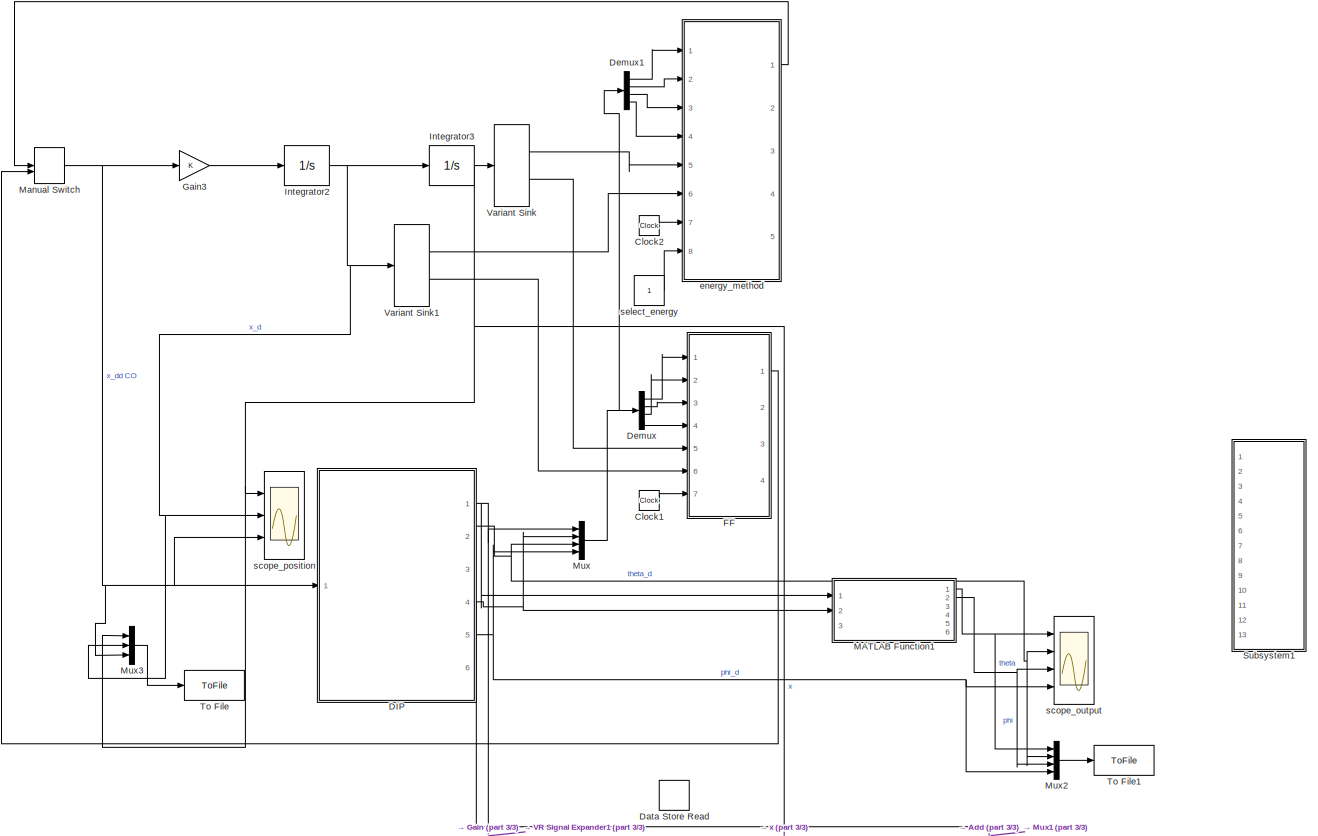
[diagram: root canvas - part 1/3, top center region]
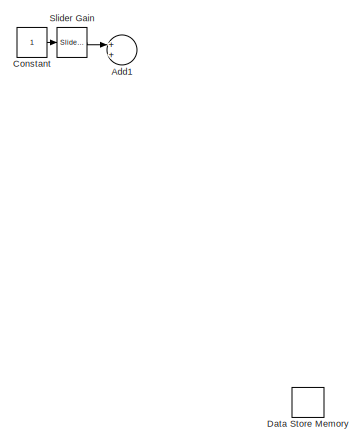
[diagram: root canvas - part 2/3, middle left region]
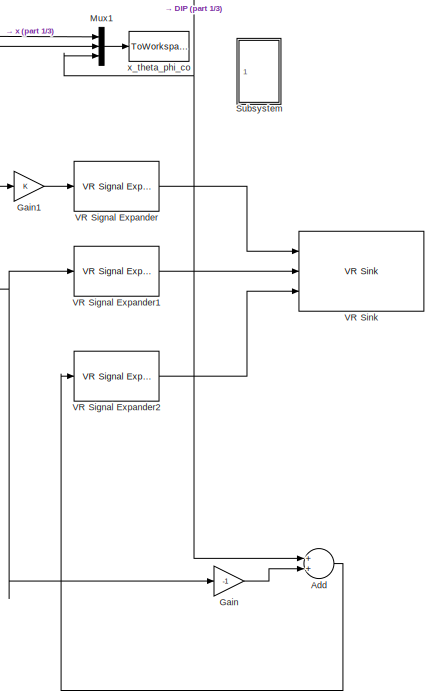
[diagram: root canvas - part 3/3, bottom right region]
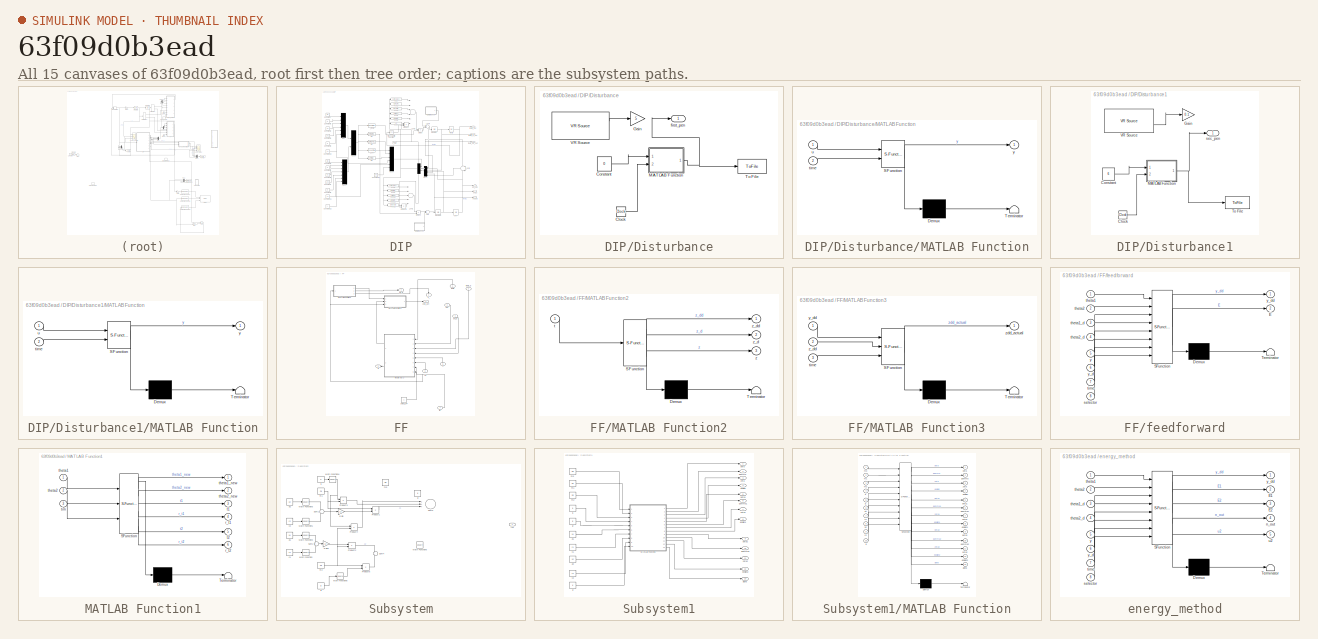
[diagram: thumbnail index - all 15 canvases of the model, root first then tree order]
MODEL slx_63f09d0b3ead
KIND model
CONFIG AbsTol = auto
CONFIG FixedStep = 0.001
CONFIG MaxStep = auto
CONFIG MinStep = auto
CONFIG RelTol = 1e-3
CONFIG SampleTimeConstraint = Unconstrained
CONFIG Solver = ode4
CONFIG SolverMode = Auto
CONFIG SolverName = ode4
CONFIG StartTime = 0.0
CONFIG StopTime = 20
BLOCK [Sum] Add
  InputSameDT = off
  OutDataTypeStr = Inherit: Inherit via internal rule
  Ports = [2, 1]
  SaturateOnIntegerOverflow = off
BLOCK [Sum] Add1
  InputSameDT = off
  OutDataTypeStr = Inherit: Inherit via internal rule
  Ports = [2, 1]
  SaturateOnIntegerOverflow = off
BLOCK [Clock] Clock1
BLOCK [Clock] Clock2
BLOCK [Constant] Constant
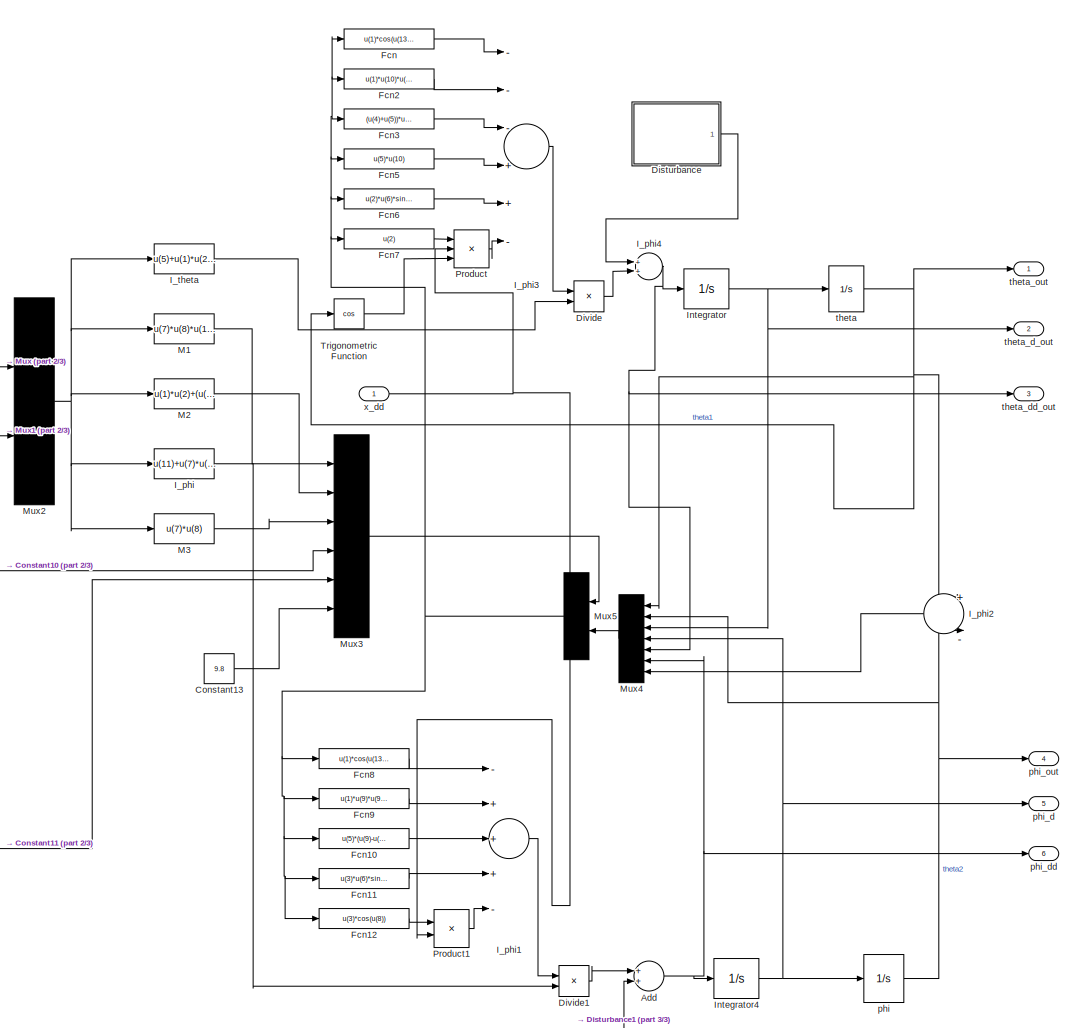
[diagram: DIP - part 1/3, most of the canvas]
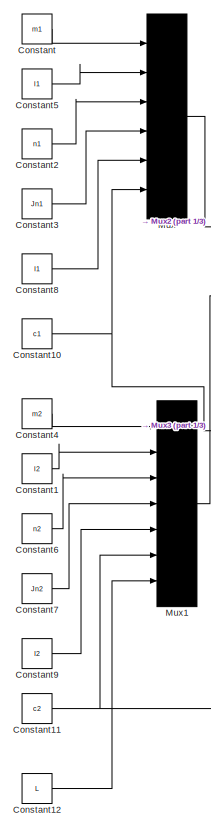
[diagram: DIP - part 2/3, middle left region]
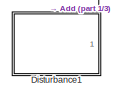
[diagram: DIP - part 3/3, bottom center region]
BLOCK [SubSystem] DIP
  Ports = [1, 6]
  RequestExecContextInheritance = off
  Variant = off
BLOCK [Sum] DIP/Add
  InputSameDT = off
  OutDataTypeStr = Inherit: Inherit via internal rule
  Ports = [2, 1]
  SaturateOnIntegerOverflow = off
BLOCK [Constant] DIP/Constant
  Value = m1
BLOCK [Constant] DIP/Constant1
  Value = l2
BLOCK [Constant] DIP/Constant10
  Value = c1
BLOCK [Constant] DIP/Constant11
  Value = c2
BLOCK [Constant] DIP/Constant12
  Value = L
BLOCK [Constant] DIP/Constant13
  Value = 9.8
BLOCK [Constant] DIP/Constant2
  Value = n1
BLOCK [Constant] DIP/Constant3
  Value = Jn1
BLOCK [Constant] DIP/Constant4
  Value = m2
BLOCK [Constant] DIP/Constant5
  Value = l1
BLOCK [Constant] DIP/Constant6
  Value = n2
BLOCK [Constant] DIP/Constant7
  Value = Jn2
BLOCK [Constant] DIP/Constant8
  Value = I1
BLOCK [Constant] DIP/Constant9
  Value = I2
BLOCK [SubSystem] DIP/Disturbance
  Commented = on
  Ports = [0, 1]
  RequestExecContextInheritance = off
  Variant = off
BLOCK [Clock] DIP/Disturbance/Clock
BLOCK [Constant] DIP/Disturbance/Constant
  Value = 0
BLOCK [Gain] DIP/Disturbance/Gain
  Gain = 5
  OutDataTypeStr = Inherit: Inherit via internal rule
  ParamDataTypeStr = Inherit: Inherit via internal rule
  SaturateOnIntegerOverflow = off
BLOCK [SubSystem] DIP/Disturbance/MATLAB Function
  ErrorFcn = Stateflow.Translate.translate
  PermitHierarchicalResolution = ExplicitOnly
  Ports = [2, 1]
  RequestExecContextInheritance = off
  SFBlockType = MATLAB Function
  TreatAsAtomicUnit = on
  Variant = off
BLOCK [Demux] DIP/Disturbance/MATLAB Function/ Demux 
  Outputs = 1
  Ports = [1, 1]
BLOCK [S-Function] DIP/Disturbance/MATLAB Function/ SFunction 
  EnableBusSupport = on
  FunctionName = sf_sfun
  PortCounts = [2 2]
  Ports = [2, 2]
  SFunctionDeploymentMode = off
  Tag = Stateflow S-Function pendulumgui 1
BLOCK [Terminator] DIP/Disturbance/MATLAB Function/ Terminator 
BLOCK [Inport] DIP/Disturbance/MATLAB Function/time
  IconDisplay = Port number
  Port = 2
BLOCK [Inport] DIP/Disturbance/MATLAB Function/u
  IconDisplay = Port number
BLOCK [Outport] DIP/Disturbance/MATLAB Function/y
  IconDisplay = Port number
BLOCK [ToFile] DIP/Disturbance/To File
  Filename = d_theta1.mat
  Ports = [1]
  SaveFormat = Timeseries
BLOCK [Reference] DIP/Disturbance/VR Source  REF=vrlib/VR Source
  InstantiateOnLoad = on
  Ports = [0, 2]
  SourceBlock = vrlib/VR Source
  SourceType = Virtual Reality Source
BLOCK [Outport] DIP/Disturbance/first_pen
  IconDisplay = Port number
BLOCK [SubSystem] DIP/Disturbance1
  Commented = on
  Ports = [0, 1]
  RequestExecContextInheritance = off
  Variant = off
BLOCK [Clock] DIP/Disturbance1/Clock
BLOCK [Constant] DIP/Disturbance1/Constant
  Value = 6
BLOCK [Gain] DIP/Disturbance1/Gain
  Gain = 0.1
  OutDataTypeStr = double
  ParamDataTypeStr = Inherit: Inherit via internal rule
  SaturateOnIntegerOverflow = off
BLOCK [SubSystem] DIP/Disturbance1/MATLAB Function
  ErrorFcn = Stateflow.Translate.translate
  PermitHierarchicalResolution = ExplicitOnly
  Ports = [2, 1]
  RequestExecContextInheritance = off
  SFBlockType = MATLAB Function
  TreatAsAtomicUnit = on
  Variant = off
BLOCK [Demux] DIP/Disturbance1/MATLAB Function/ Demux 
  Outputs = 1
  Ports = [1, 1]
BLOCK [S-Function] DIP/Disturbance1/MATLAB Function/ SFunction 
  EnableBusSupport = on
  FunctionName = sf_sfun
  PortCounts = [2 2]
  Ports = [2, 2]
  SFunctionDeploymentMode = off
  Tag = Stateflow S-Function pendulumgui 4
BLOCK [Terminator] DIP/Disturbance1/MATLAB Function/ Terminator 
BLOCK [Inport] DIP/Disturbance1/MATLAB Function/time
  IconDisplay = Port number
  Port = 2
BLOCK [Inport] DIP/Disturbance1/MATLAB Function/u
  IconDisplay = Port number
BLOCK [Outport] DIP/Disturbance1/MATLAB Function/y
  IconDisplay = Port number
BLOCK [ToFile] DIP/Disturbance1/To File
  Filename = d_theta2.mat
  Ports = [1]
  SaveFormat = Timeseries
BLOCK [Reference] DIP/Disturbance1/VR Source  REF=vrlib/VR Source
  InstantiateOnLoad = on
  Ports = [0, 2]
  SourceBlock = vrlib/VR Source
  SourceType = Virtual Reality Source
BLOCK [Outport] DIP/Disturbance1/sec_pen
  IconDisplay = Port number
BLOCK [Product] DIP/Divide
  InputSameDT = off
  Inputs = */
  OutDataTypeStr = Inherit: Inherit via internal rule
  Ports = [2, 1]
  RndMeth = Floor
  SaturateOnIntegerOverflow = off
BLOCK [Product] DIP/Divide1
  InputSameDT = off
  Inputs = */
  OutDataTypeStr = Inherit: Inherit via internal rule
  Ports = [2, 1]
  RndMeth = Floor
  SaturateOnIntegerOverflow = off
BLOCK [Fcn] DIP/Fcn
  Expr = u(1)*cos(u(13))*u(12)
BLOCK [Fcn] DIP/Fcn10
  Expr = u(5)*(u(9)-u(10))
BLOCK [Fcn] DIP/Fcn11
  Expr = u(3)*u(6)*sin(u(8))
BLOCK [Fcn] DIP/Fcn12
  Expr = u(3)*cos(u(8))
BLOCK [Fcn] DIP/Fcn2
  Expr = u(1)*u(10)*u(10)*sin(u(13))
BLOCK [Fcn] DIP/Fcn3
  Expr = (u(4)+u(5))*u(9)
BLOCK [Fcn] DIP/Fcn5
  Expr = u(5)*u(10)
BLOCK [Fcn] DIP/Fcn6
  Expr = u(2)*u(6)*sin(u(7))
BLOCK [Fcn] DIP/Fcn7
  Expr = u(2)
BLOCK [Fcn] DIP/Fcn8
  Expr = u(1)*cos(u(13))*u(11)
BLOCK [Fcn] DIP/Fcn9
  Expr = u(1)*u(9)*u(9)*sin(u(13))
BLOCK [Fcn] DIP/I_phi
  Expr = u(11)+u(7)*u(8)*u(8)+u(10)
BLOCK [Sum] DIP/I_phi1
  InputSameDT = off
  Inputs = -+++-
  OutDataTypeStr = Inherit: Inherit via internal rule
  Ports = [5, 1]
  SaturateOnIntegerOverflow = off
BLOCK [Sum] DIP/I_phi2
  IconShape = round
  InputSameDT = off
  Inputs = +|-
  OutDataTypeStr = Inherit: Inherit via internal rule
  Ports = [2, 1]
  SaturateOnIntegerOverflow = off
BLOCK [Sum] DIP/I_phi3
  InputSameDT = off
  Inputs = ---++-
  OutDataTypeStr = Inherit: Inherit via internal rule
  Ports = [6, 1]
  SaturateOnIntegerOverflow = off
BLOCK [Sum] DIP/I_phi4
  InputSameDT = off
  OutDataTypeStr = Inherit: Inherit via internal rule
  Ports = [2, 1]
  SaturateOnIntegerOverflow = off
BLOCK [Fcn] DIP/I_theta
  Expr = u(5)+u(1)*u(2)*u(2)+(u(7)+u(9))*u(13)*u(13)+u(4)
BLOCK [Integrator] DIP/Integrator
  Ports = [1, 1]
BLOCK [Integrator] DIP/Integrator4
  Ports = [1, 1]
BLOCK [Fcn] DIP/M1
  Expr = u(7)*u(8)*u(13)
BLOCK [Fcn] DIP/M2
  Expr = u(1)*u(2)+(u(7)+u(9))*u(13)
BLOCK [Fcn] DIP/M3
  Expr = u(7)*u(8)
BLOCK [Mux] DIP/Mux
  DisplayOption = bar
  Inputs = 6
  Ports = [6, 1]
BLOCK [Mux] DIP/Mux1
  DisplayOption = bar
  Inputs = 7
  Ports = [7, 1]
BLOCK [Mux] DIP/Mux2
  DisplayOption = bar
  Inputs = 2
  Ports = [2, 1]
BLOCK [Mux] DIP/Mux3
  DisplayOption = bar
  Inputs = 6
  Ports = [6, 1]
BLOCK [Mux] DIP/Mux4
  DisplayOption = bar
  Inputs = 7
  Ports = [7, 1]
BLOCK [Mux] DIP/Mux5
  DisplayOption = bar
  Inputs = 2
  Ports = [2, 1]
BLOCK [Product] DIP/Product
  InputSameDT = off
  Inputs = 3
  OutDataTypeStr = Inherit: Inherit via internal rule
  Ports = [3, 1]
  RndMeth = Floor
  SaturateOnIntegerOverflow = off
BLOCK [Product] DIP/Product1
  InputSameDT = off
  OutDataTypeStr = Inherit: Inherit via internal rule
  Ports = [2, 1]
  RndMeth = Floor
  SaturateOnIntegerOverflow = off
BLOCK [Trigonometry] DIP/Trigonometric Function
  Operator = cos
  Ports = [1, 1]
BLOCK [Integrator] DIP/phi
  InitialCondition = -pi
  Ports = [1, 1]
  WrapState = on
BLOCK [Outport] DIP/phi_d
  IconDisplay = Port number
  Port = 5
BLOCK [Outport] DIP/phi_dd
  IconDisplay = Port number
  Port = 6
BLOCK [Outport] DIP/phi_out
  IconDisplay = Port number
  Port = 4
BLOCK [Integrator] DIP/theta
  InitialCondition = -pi+(pi/100)
  Ports = [1, 1]
  WrapState = on
BLOCK [Outport] DIP/theta_d_out
  IconDisplay = Port number
  Port = 2
BLOCK [Outport] DIP/theta_dd_out
  IconDisplay = Port number
  Port = 3
BLOCK [Outport] DIP/theta_out
  IconDisplay = Port number
BLOCK [Inport] DIP/x_dd
  IconDisplay = Port number
BLOCK [DataStoreMemory] Data Store Memory
  DataStoreName = n
  InitialValue = 1
  OutDataTypeStr = double
  ShowAdditionalParam = off
  SignalType = real
BLOCK [DataStoreRead] Data Store Read
  DataStoreElements = n
  DataStoreName = n
  Ports = [0, 1]
BLOCK [Demux] Demux
  DisplayOption = bar
  Ports = [1, 4]
BLOCK [Demux] Demux1
  DisplayOption = bar
  Ports = [1, 4]
BLOCK [SubSystem] FF
  Ports = [7, 4]
  RequestExecContextInheritance = off
  Variant = off
BLOCK [Outport] FF/E
  IconDisplay = Port number
  Port = 3
BLOCK [SubSystem] FF/MATLAB Function2
  ErrorFcn = Stateflow.Translate.translate
  PermitHierarchicalResolution = ExplicitOnly
  Ports = [1, 3]
  RequestExecContextInheritance = off
  SFBlockType = MATLAB Function
  TreatAsAtomicUnit = on
  Variant = off
BLOCK [Demux] FF/MATLAB Function2/ Demux 
  Outputs = 1
  Ports = [1, 1]
BLOCK [S-Function] FF/MATLAB Function2/ SFunction 
  EnableBusSupport = on
  FunctionName = sf_sfun
  PortCounts = [1 4]
  Ports = [1, 4]
  SFunctionDeploymentMode = off
  Tag = Stateflow S-Function pendulumgui 6
BLOCK [Terminator] FF/MATLAB Function2/ Terminator 
BLOCK [Inport] FF/MATLAB Function2/t
  IconDisplay = Port number
BLOCK [Outport] FF/MATLAB Function2/z
  IconDisplay = Port number
  Port = 3
BLOCK [Outport] FF/MATLAB Function2/z_d
  IconDisplay = Port number
  Port = 2
BLOCK [Outport] FF/MATLAB Function2/z_dd
  IconDisplay = Port number
BLOCK [SubSystem] FF/MATLAB Function3
  ErrorFcn = Stateflow.Translate.translate
  PermitHierarchicalResolution = ExplicitOnly
  Ports = [3, 1]
  RequestExecContextInheritance = off
  SFBlockType = MATLAB Function
  TreatAsAtomicUnit = on
  Variant = off
BLOCK [Demux] FF/MATLAB Function3/ Demux 
  Outputs = 1
  Ports = [1, 1]
BLOCK [S-Function] FF/MATLAB Function3/ SFunction 
  EnableBusSupport = on
  FunctionName = sf_sfun
  PortCounts = [3 2]
  Ports = [3, 2]
  SFunctionDeploymentMode = off
  Tag = Stateflow S-Function pendulumgui 7
BLOCK [Terminator] FF/MATLAB Function3/ Terminator 
BLOCK [Inport] FF/MATLAB Function3/time
  IconDisplay = Port number
  Port = 3
BLOCK [Inport] FF/MATLAB Function3/y_dd
  IconDisplay = Port number
BLOCK [Inport] FF/MATLAB Function3/z_dd
  IconDisplay = Port number
  Port = 2
BLOCK [Outport] FF/MATLAB Function3/zdd_actual
  IconDisplay = Port number
BLOCK [SubSystem] FF/feedforward
  ErrorFcn = Stateflow.Translate.translate
  PermitHierarchicalResolution = ExplicitOnly
  Ports = [8, 2]
  RequestExecContextInheritance = off
  SFBlockType = MATLAB Function
  TreatAsAtomicUnit = on
  Variant = off
BLOCK [Demux] FF/feedforward/ Demux 
  Outputs = 1
  Ports = [1, 1]
BLOCK [S-Function] FF/feedforward/ SFunction 
  EnableBusSupport = on
  FunctionName = sf_sfun
  PortCounts = [8 3]
  Ports = [8, 3]
  SFunctionDeploymentMode = off
  Tag = Stateflow S-Function pendulumgui 5
BLOCK [Terminator] FF/feedforward/ Terminator 
BLOCK [Outport] FF/feedforward/E
  IconDisplay = Port number
  Port = 2
BLOCK [Inport] FF/feedforward/selector
  IconDisplay = Port number
  Port = 8
BLOCK [Inport] FF/feedforward/theta1
  IconDisplay = Port number
BLOCK [Inport] FF/feedforward/theta1_d
  IconDisplay = Port number
  Port = 3
BLOCK [Inport] FF/feedforward/theta2
  IconDisplay = Port number
  Port = 2
BLOCK [Inport] FF/feedforward/theta2_d
  IconDisplay = Port number
  Port = 4
BLOCK [Inport] FF/feedforward/time
  IconDisplay = Port number
  Port = 7
BLOCK [Inport] FF/feedforward/y
  IconDisplay = Port number
  Port = 5
BLOCK [Inport] FF/feedforward/y_d
  IconDisplay = Port number
  Port = 6
BLOCK [Outport] FF/feedforward/y_dd
  IconDisplay = Port number
BLOCK [Inport] FF/phi
  IconDisplay = Port number
  Port = 3
BLOCK [Inport] FF/phi_d
  IconDisplay = Port number
  Port = 4
BLOCK [Constant] FF/select_FF
BLOCK [Inport] FF/theta
  IconDisplay = Port number
BLOCK [Inport] FF/theta_d
  IconDisplay = Port number
  Port = 2
BLOCK [Inport] FF/tim
  IconDisplay = Port number
  Port = 7
BLOCK [Inport] FF/y
  IconDisplay = Port number
  Port = 5
BLOCK [Inport] FF/yd
  IconDisplay = Port number
  Port = 6
BLOCK [Outport] FF/z_
  IconDisplay = Port number
  Port = 2
BLOCK [Outport] FF/zd_ff
  IconDisplay = Port number
  Port = 4
BLOCK [Outport] FF/zdd_act
  IconDisplay = Port number
BLOCK [Gain] Gain
  Gain = -1
  OutDataTypeStr = Inherit: Inherit via internal rule
  ParamDataTypeStr = Inherit: Inherit via internal rule
  SaturateOnIntegerOverflow = off
BLOCK [Gain] Gain1
  OutDataTypeStr = Inherit: Inherit via internal rule
  ParamDataTypeStr = Inherit: Inherit via internal rule
  SaturateOnIntegerOverflow = off
BLOCK [Gain] Gain3
  OutDataTypeStr = Inherit: Inherit via internal rule
  ParamDataTypeStr = Inherit: Inherit via internal rule
  SaturateOnIntegerOverflow = off
BLOCK [Integrator] Integrator2
  Ports = [1, 1]
BLOCK [Integrator] Integrator3
  LimitOutput = on
  LowerSaturationLimit = -8
  Ports = [1, 1]
  UpperSaturationLimit = 8
BLOCK [SubSystem] MATLAB Function1
  ErrorFcn = Stateflow.Translate.translate
  PermitHierarchicalResolution = ExplicitOnly
  Ports = [3, 6]
  RequestExecContextInheritance = off
  SFBlockType = MATLAB Function
  TreatAsAtomicUnit = on
  Variant = off
BLOCK [Demux] MATLAB Function1/ Demux 
  Outputs = 1
  Ports = [1, 1]
BLOCK [S-Function] MATLAB Function1/ SFunction 
  EnableBusSupport = on
  FunctionName = sf_sfun
  PortCounts = [3 7]
  Ports = [3, 7]
  SFunctionDeploymentMode = off
  Tag = Stateflow S-Function pendulumgui 3
BLOCK [Terminator] MATLAB Function1/ Terminator 
BLOCK [Outport] MATLAB Function1/r_t1
  IconDisplay = Port number
  Port = 4
BLOCK [Outport] MATLAB Function1/r_t2
  IconDisplay = Port number
  Port = 6
BLOCK [Outport] MATLAB Function1/t1
  IconDisplay = Port number
  Port = 3
BLOCK [Outport] MATLAB Function1/t2
  IconDisplay = Port number
  Port = 5
BLOCK [Inport] MATLAB Function1/theta1
  IconDisplay = Port number
BLOCK [Outport] MATLAB Function1/theta1_new
  IconDisplay = Port number
BLOCK [Inport] MATLAB Function1/theta2
  IconDisplay = Port number
  Port = 2
BLOCK [Outport] MATLAB Function1/theta2_new
  IconDisplay = Port number
  Port = 2
BLOCK [Inport] MATLAB Function1/tim
  IconDisplay = Port number
  Port = 3
BLOCK [ManualSwitch] Manual Switch
BLOCK [Mux] Mux
  DisplayOption = bar
  Ports = [4, 1]
BLOCK [Mux] Mux1
  DisplayOption = bar
  Inputs = 3
  Ports = [3, 1]
BLOCK [Mux] Mux2
  DisplayOption = bar
  Ports = [4, 1]
BLOCK [Mux] Mux3
  DisplayOption = bar
  Inputs = 3
  Ports = [3, 1]
BLOCK [Reference] Slider Gain  REF=simulink/Math
Operations/Slider
Gain
  Ports = [1, 1]
  SourceBlock = simulink/Math\nOperations/Slider\nGain
  SourceType = Slider Gain
BLOCK [SubSystem] Subsystem
  Commented = on
  Ports = [1]
  RequestExecContextInheritance = off
  Variant = off
BLOCK [Gain] Subsystem/Gain
  Gain = 12
  OutDataTypeStr = Inherit: Inherit via internal rule
  ParamDataTypeStr = Inherit: Inherit via internal rule
  SaturateOnIntegerOverflow = off
BLOCK [Gain] Subsystem/Gain1
  Gain = 12
  OutDataTypeStr = Inherit: Inherit via internal rule
  ParamDataTypeStr = Inherit: Inherit via internal rule
  SaturateOnIntegerOverflow = off
BLOCK [Inport] Subsystem/In1
  IconDisplay = Port number
BLOCK [Math] Subsystem/Math Function
  Operator = square
  Ports = [1, 1]
BLOCK [Math] Subsystem/Math Function1
  Operator = square
  Ports = [1, 1]
BLOCK [Math] Subsystem/Math Function2
  Operator = square
  Ports = [1, 1]
BLOCK [Math] Subsystem/Math Function3
  Operator = square
  Ports = [1, 1]
BLOCK [Math] Subsystem/Math Function4
  Operator = square
  Ports = [1, 1]
BLOCK [Math] Subsystem/Math Function5
  Operator = square
  Ports = [1, 1]
BLOCK [Math] Subsystem/Math Function6
  Operator = square
  Ports = [1, 1]
BLOCK [Product] Subsystem/Product1
  InputSameDT = off
  OutDataTypeStr = Inherit: Inherit via internal rule
  Ports = [2, 1]
  RndMeth = Floor
  SaturateOnIntegerOverflow = off
BLOCK [Product] Subsystem/Product2
  InputSameDT = off
  OutDataTypeStr = Inherit: Inherit via internal rule
  Ports = [2, 1]
  RndMeth = Floor
  SaturateOnIntegerOverflow = off
BLOCK [Product] Subsystem/Product3
  InputSameDT = off
  OutDataTypeStr = Inherit: Inherit via internal rule
  Ports = [2, 1]
  RndMeth = Floor
  SaturateOnIntegerOverflow = off
BLOCK [Product] Subsystem/Product4
  InputSameDT = off
  OutDataTypeStr = Inherit: Inherit via internal rule
  Ports = [2, 1]
  RndMeth = Floor
  SaturateOnIntegerOverflow = off
BLOCK [Product] Subsystem/Product5
  InputSameDT = off
  OutDataTypeStr = Inherit: Inherit via internal rule
  Ports = [2, 1]
  RndMeth = Floor
  SaturateOnIntegerOverflow = off
BLOCK [Sum] Subsystem/Sum1
  IconShape = round
  InputSameDT = off
  Inputs = +|+
  OutDataTypeStr = Inherit: Inherit via internal rule
  Ports = [2, 1]
  SaturateOnIntegerOverflow = off
BLOCK [Sum] Subsystem/Sum2
  IconShape = round
  InputSameDT = off
  Inputs = +|+
  OutDataTypeStr = Inherit: Inherit via internal rule
  Ports = [2, 1]
  SaturateOnIntegerOverflow = off
BLOCK [Sum] Subsystem/Sum3
  InputSameDT = off
  Inputs = +++
  OutDataTypeStr = Inherit: Inherit via internal rule
  Ports = [3, 1]
  SaturateOnIntegerOverflow = off
BLOCK [Sum] Subsystem/Sum4
  IconShape = round
  InputSameDT = off
  Inputs = +|+
  OutDataTypeStr = Inherit: Inherit via internal rule
  Ports = [2, 1]
  SaturateOnIntegerOverflow = off
BLOCK [Constant] Subsystem/a1
  Value = a1
BLOCK [Constant] Subsystem/a2
  Value = a2
BLOCK [Constant] Subsystem/c1
  Value = c2
BLOCK [Constant] Subsystem/c2
  Value = c2
BLOCK [Constant] Subsystem/g
  Value = g
BLOCK [Constant] Subsystem/l1
  Value = l1
BLOCK [Constant] Subsystem/l2
  Value = l2
BLOCK [Constant] Subsystem/m0
  Value = m0
BLOCK [Constant] Subsystem/m1
  Value = m1
BLOCK [Constant] Subsystem/m2
  Value = m2
BLOCK [SubSystem] Subsystem1
  Commented = on
  Ports = [0, 13]
  RequestExecContextInheritance = off
  Variant = off
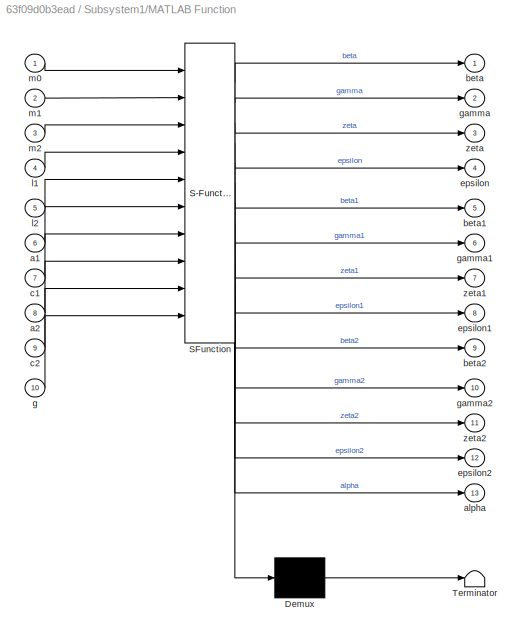
BLOCK [SubSystem] Subsystem1/MATLAB Function
  ErrorFcn = Stateflow.Translate.translate
  PermitHierarchicalResolution = ExplicitOnly
  Ports = [10, 13]
  RequestExecContextInheritance = off
  SFBlockType = MATLAB Function
  TreatAsAtomicUnit = on
  Variant = off
BLOCK [Demux] Subsystem1/MATLAB Function/ Demux 
  Outputs = 1
  Ports = [1, 1]
BLOCK [S-Function] Subsystem1/MATLAB Function/ SFunction 
  EnableBusSupport = on
  FunctionName = sf_sfun
  PortCounts = [10 14]
  Ports = [10, 14]
  SFunctionDeploymentMode = off
  Tag = Stateflow S-Function pendulumgui 2
BLOCK [Terminator] Subsystem1/MATLAB Function/ Terminator 
BLOCK [Inport] Subsystem1/MATLAB Function/a1
  IconDisplay = Port number
  Port = 6
BLOCK [Inport] Subsystem1/MATLAB Function/a2
  IconDisplay = Port number
  Port = 8
BLOCK [Outport] Subsystem1/MATLAB Function/alpha
  IconDisplay = Port number
  Port = 13
BLOCK [Outport] Subsystem1/MATLAB Function/beta
  IconDisplay = Port number
BLOCK [Outport] Subsystem1/MATLAB Function/beta1
  IconDisplay = Port number
  Port = 5
BLOCK [Outport] Subsystem1/MATLAB Function/beta2
  IconDisplay = Port number
  Port = 9
BLOCK [Inport] Subsystem1/MATLAB Function/c1
  IconDisplay = Port number
  Port = 7
BLOCK [Inport] Subsystem1/MATLAB Function/c2
  IconDisplay = Port number
  Port = 9
BLOCK [Outport] Subsystem1/MATLAB Function/epsilon
  IconDisplay = Port number
  Port = 4
BLOCK [Outport] Subsystem1/MATLAB Function/epsilon1
  IconDisplay = Port number
  Port = 8
BLOCK [Outport] Subsystem1/MATLAB Function/epsilon2
  IconDisplay = Port number
  Port = 12
BLOCK [Inport] Subsystem1/MATLAB Function/g
  IconDisplay = Port number
  Port = 10
BLOCK [Outport] Subsystem1/MATLAB Function/gamma
  IconDisplay = Port number
  Port = 2
BLOCK [Outport] Subsystem1/MATLAB Function/gamma1
  IconDisplay = Port number
  Port = 6
BLOCK [Outport] Subsystem1/MATLAB Function/gamma2
  IconDisplay = Port number
  Port = 10
BLOCK [Inport] Subsystem1/MATLAB Function/l1
  IconDisplay = Port number
  Port = 4
BLOCK [Inport] Subsystem1/MATLAB Function/l2
  IconDisplay = Port number
  Port = 5
BLOCK [Inport] Subsystem1/MATLAB Function/m0
  IconDisplay = Port number
BLOCK [Inport] Subsystem1/MATLAB Function/m1
  IconDisplay = Port number
  Port = 2
BLOCK [Inport] Subsystem1/MATLAB Function/m2
  IconDisplay = Port number
  Port = 3
BLOCK [Outport] Subsystem1/MATLAB Function/zeta
  IconDisplay = Port number
  Port = 3
BLOCK [Outport] Subsystem1/MATLAB Function/zeta1
  IconDisplay = Port number
  Port = 7
BLOCK [Outport] Subsystem1/MATLAB Function/zeta2
  IconDisplay = Port number
  Port = 11
BLOCK [Constant] Subsystem1/a1
  Value = a1
BLOCK [Constant] Subsystem1/a2
  Value = a2
BLOCK [Outport] Subsystem1/alpha
  IconDisplay = Port number
  Port = 13
BLOCK [Outport] Subsystem1/beta
  IconDisplay = Port number
BLOCK [Outport] Subsystem1/beta1
  IconDisplay = Port number
  Port = 5
BLOCK [Outport] Subsystem1/beta2
  IconDisplay = Port number
  Port = 9
BLOCK [Constant] Subsystem1/c1
  Value = c1
BLOCK [Constant] Subsystem1/c2
  Value = c2
BLOCK [Outport] Subsystem1/epsilon1
  IconDisplay = Port number
  Port = 8
BLOCK [Outport] Subsystem1/epsilon2
  IconDisplay = Port number
  Port = 12
BLOCK [Outport] Subsystem1/epsllon
  IconDisplay = Port number
  Port = 4
BLOCK [Constant] Subsystem1/g
  Value = g
BLOCK [Outport] Subsystem1/gamma
  IconDisplay = Port number
  Port = 2
BLOCK [Outport] Subsystem1/gamma1
  IconDisplay = Port number
  Port = 6
BLOCK [Outport] Subsystem1/gamma2
  IconDisplay = Port number
  Port = 10
BLOCK [Constant] Subsystem1/l1 
  Value = l1
BLOCK [Constant] Subsystem1/l2
  Value = l2
BLOCK [Constant] Subsystem1/m0
  Value = m0
BLOCK [Constant] Subsystem1/m1
  Value = m1
BLOCK [Constant] Subsystem1/m2
  Value = m2
BLOCK [Outport] Subsystem1/zeta
  IconDisplay = Port number
  Port = 3
BLOCK [Outport] Subsystem1/zeta1
  IconDisplay = Port number
  Port = 7
BLOCK [Outport] Subsystem1/zeta2
  IconDisplay = Port number
  Port = 11
BLOCK [ToFile] To File
  Filename = smc_position.mat
  Ports = [1]
  SaveFormat = Timeseries
BLOCK [ToFile] To File1
  Filename = smc_angles.mat
  Ports = [1]
  SaveFormat = Timeseries
BLOCK [Reference] VR Signal Expander  REF=vrlib/VR Signal Expander
  Ports = [1, 1]
  SourceBlock = vrlib/VR Signal Expander
  SourceType = VR Signal Expander
BLOCK [Reference] VR Signal Expander1  REF=vrlib/VR Signal Expander
  Ports = [1, 1]
  SourceBlock = vrlib/VR Signal Expander
  SourceType = VR Signal Expander
BLOCK [Reference] VR Signal Expander2  REF=vrlib/VR Signal Expander
  Ports = [1, 1]
  SourceBlock = vrlib/VR Signal Expander
  SourceType = VR Signal Expander
BLOCK [Reference] VR Sink  REF=vrlib/VR Sink
  InstantiateOnLoad = on
  Ports = [3]
  SourceBlock = vrlib/VR Sink
  SourceType = Virtual Reality Sink
BLOCK [VariantSink] Variant Sink
  Ports = [1, 2]
  ShowConditionOnBlock = on
BLOCK [VariantSink] Variant Sink1
  Ports = [1, 2]
BLOCK [SubSystem] energy_method
  ErrorFcn = Stateflow.Translate.translate
  PermitHierarchicalResolution = ExplicitOnly
  Ports = [8, 5]
  RequestExecContextInheritance = off
  SFBlockType = MATLAB Function
  TreatAsAtomicUnit = on
  Variant = off
BLOCK [Demux] energy_method/ Demux 
  Outputs = 1
  Ports = [1, 1]
BLOCK [S-Function] energy_method/ SFunction 
  EnableBusSupport = on
  FunctionName = sf_sfun
  PortCounts = [8 6]
  Ports = [8, 6]
  SFunctionDeploymentMode = off
  Tag = Stateflow S-Function pendulumgui 9
BLOCK [Terminator] energy_method/ Terminator 
BLOCK [Outport] energy_method/E1
  IconDisplay = Port number
  Port = 2
BLOCK [Outport] energy_method/E2
  IconDisplay = Port number
  Port = 3
BLOCK [Outport] energy_method/n_out
  IconDisplay = Port number
  Port = 4
BLOCK [Inport] energy_method/selector
  IconDisplay = Port number
  Port = 8
BLOCK [Inport] energy_method/theta1
  IconDisplay = Port number
BLOCK [Inport] energy_method/theta1_d
  IconDisplay = Port number
  Port = 3
BLOCK [Inport] energy_method/theta2
  IconDisplay = Port number
  Port = 2
BLOCK [Inport] energy_method/theta2_d
  IconDisplay = Port number
  Port = 4
BLOCK [Inport] energy_method/time
  IconDisplay = Port number
  Port = 7
BLOCK [Outport] energy_method/u2
  IconDisplay = Port number
  Port = 5
BLOCK [Inport] energy_method/y
  IconDisplay = Port number
  Port = 5
BLOCK [Inport] energy_method/y_d
  IconDisplay = Port number
  Port = 6
BLOCK [Outport] energy_method/y_dd
  IconDisplay = Port number
BLOCK [Scope] scope_output
  NumInputPorts = 4
  Ports = [4]
  ScopeSpecificationString = Simulink.scopes.TimeScopeBlockCfg('CurrentConfiguration', extmgr.ConfigurationSet(extmgr.Configuration('Core','General UI',true),extmgr.Configuration('Core','Source UI',true),extmgr.Configuration('Sources','WiredSimulink',true,'DataLoggingVariableName','ScopeData1','DataLoggingSaveFormat','StructureWithTime','DataLoggingDecimation','1','DataLoggingDecimateData',true),extmgr.Configuration('Visuals'...<+3654ch>
BLOCK [Scope] scope_position
  NumInputPorts = 3
  Ports = [3]
  ScopeSpecificationString = Simulink.scopes.TimeScopeBlockCfg('CurrentConfiguration', extmgr.ConfigurationSet(extmgr.Configuration('Core','General UI',true),extmgr.Configuration('Core','Source UI',true),extmgr.Configuration('Sources','WiredSimulink',true,'DataLoggingVariableName','ScopeData1','DataLoggingSaveFormat','StructureWithTime','DataLoggingDecimation','1','DataLoggingDecimateData',true),extmgr.Configuration('Visuals'...<+2985ch>
BLOCK [Constant] select_energy
BLOCK [ToWorkspace] x_theta_phi_co
  FixptAsFi = on
  MaxDataPoints = inf
  Ports = [1]
  SampleTime = -1
  Save2DSignal = 3-D array (concatenate along third dimension)
  SaveFormat = Timeseries
  VariableName = x_theta
LINE Add:1 -> VR Signal Expander2:1
LINE Clock1:1 -> FF:7
LINE Clock2:1 -> energy_method:7
LINE Constant:1 -> Slider Gain:1
NET DIP/Add:1 -> DIP/Integrator4:1, DIP/Mux4:6, DIP/phi_dd:1
NET DIP/Constant10:1 -> DIP/Mux3:4, DIP/Mux:6
NET DIP/Constant11:1 -> DIP/Mux1:6, DIP/Mux3:5
LINE DIP/Constant12:1 -> DIP/Mux1:7
LINE DIP/Constant13:1 -> DIP/Mux3:6
LINE DIP/Constant1:1 -> DIP/Mux1:2
LINE DIP/Constant2:1 -> DIP/Mux:3
LINE DIP/Constant3:1 -> DIP/Mux:4
LINE DIP/Constant4:1 -> DIP/Mux1:1
LINE DIP/Constant5:1 -> DIP/Mux:2
LINE DIP/Constant6:1 -> DIP/Mux1:3
LINE DIP/Constant7:1 -> DIP/Mux1:4
LINE DIP/Constant8:1 -> DIP/Mux:5
LINE DIP/Constant9:1 -> DIP/Mux1:5
LINE DIP/Constant:1 -> DIP/Mux:1
LINE DIP/Disturbance/Clock:1 -> DIP/Disturbance/MATLAB Function:2
LINE DIP/Disturbance/Constant:1 -> DIP/Disturbance/MATLAB Function:1
NET DIP/Disturbance/MATLAB Function:1 -> DIP/Disturbance/To File:1, DIP/Disturbance/first_pen:1
LINE DIP/Disturbance/VR Source:1 -> DIP/Disturbance/Gain:1
LINE DIP/Disturbance1/Clock:1 -> DIP/Disturbance1/MATLAB Function:2
LINE DIP/Disturbance1/Constant:1 -> DIP/Disturbance1/MATLAB Function:1
NET DIP/Disturbance1/MATLAB Function:1 -> DIP/Disturbance1/To File:1, DIP/Disturbance1/sec_pen:1
LINE DIP/Disturbance1/VR Source:2 -> DIP/Disturbance1/Gain:1
LINE DIP/Disturbance1:1 -> DIP/Add:2
LINE DIP/Disturbance:1 -> DIP/I_phi4:1
LINE DIP/Divide1:1 -> DIP/Add:1
LINE DIP/Divide:1 -> DIP/I_phi4:2
LINE DIP/Fcn10:1 -> DIP/I_phi1:3
LINE DIP/Fcn11:1 -> DIP/I_phi1:4
LINE DIP/Fcn12:1 -> DIP/Product1:1
LINE DIP/Fcn2:1 -> DIP/I_phi3:2
LINE DIP/Fcn3:1 -> DIP/I_phi3:3
LINE DIP/Fcn5:1 -> DIP/I_phi3:4
LINE DIP/Fcn6:1 -> DIP/I_phi3:5
LINE DIP/Fcn7:1 -> DIP/Product:1
LINE DIP/Fcn8:1 -> DIP/I_phi1:1
LINE DIP/Fcn9:1 -> DIP/I_phi1:2
LINE DIP/Fcn:1 -> DIP/I_phi3:1
LINE DIP/I_phi1:1 -> DIP/Divide1:1
LINE DIP/I_phi2:1 -> DIP/Mux4:7
LINE DIP/I_phi3:1 -> DIP/Divide:1
NET DIP/I_phi4:1 -> DIP/Integrator:1, DIP/Mux4:5, DIP/theta_dd_out:1
LINE DIP/I_phi:1 -> DIP/Divide1:2
LINE DIP/I_theta:1 -> DIP/Divide:2
NET DIP/Integrator4:1 -> DIP/Mux4:4, DIP/phi:1, DIP/phi_d:1
NET DIP/Integrator:1 -> DIP/Mux4:3, DIP/theta:1, DIP/theta_d_out:1
LINE DIP/M1:1 -> DIP/Mux3:1
LINE DIP/M2:1 -> DIP/Mux3:2
LINE DIP/M3:1 -> DIP/Mux3:3
LINE DIP/Mux1:1 -> DIP/Mux2:2
NET DIP/Mux2:1 -> DIP/I_phi:1, DIP/I_theta:1, DIP/M1:1, DIP/M2:1, DIP/M3:1
LINE DIP/Mux3:1 -> DIP/Mux5:1
LINE DIP/Mux4:1 -> DIP/Mux5:2
NET DIP/Mux5:1 -> DIP/Fcn10:1, DIP/Fcn11:1, DIP/Fcn12:1, DIP/Fcn2:1, DIP/Fcn3:1, DIP/Fcn5:1, DIP/Fcn6:1, DIP/Fcn7:1, DIP/Fcn8:1, DIP/Fcn9:1, DIP/Fcn:1
LINE DIP/Mux:1 -> DIP/Mux2:1
LINE DIP/Product1:1 -> DIP/I_phi1:5
LINE DIP/Product:1 -> DIP/I_phi3:6
LINE DIP/Trigonometric Function:1 -> DIP/Product:3
NET DIP/phi:1 -> DIP/I_phi2:2, DIP/Mux4:2, DIP/phi_out:1
NET DIP/theta:1 -> DIP/I_phi2:1, DIP/Mux4:1, DIP/Trigonometric Function:1, DIP/theta_out:1
NET DIP/x_dd:1 -> DIP/Product1:2, DIP/Product:2
NET DIP:1 -> Gain:1, MATLAB Function1:1, Mux1:2, Mux:1, VR Signal Expander1:1
NET DIP:2 -> Mux2:2, Mux:3, scope_output:2
NET DIP:4 -> Add:1, MATLAB Function1:2, Mux1:3, Mux:2
NET DIP:5 -> Mux2:4, Mux:4, scope_output:4
LINE Demux1:1 -> energy_method:1
LINE Demux1:2 -> energy_method:2
LINE Demux1:3 -> energy_method:3
LINE Demux1:4 -> energy_method:4
LINE Demux:1 -> FF:1
LINE Demux:2 -> FF:3
LINE Demux:3 -> FF:2
LINE Demux:4 -> FF:4
LINE FF/MATLAB Function2:1 -> FF/MATLAB Function3:1
LINE FF/MATLAB Function2:2 -> FF/zd_ff:1
LINE FF/MATLAB Function2:3 -> FF/z_:1
LINE FF/MATLAB Function3:1 -> FF/zdd_act:1
LINE FF/feedforward:1 -> FF/MATLAB Function3:2
LINE FF/feedforward:2 -> FF/E:1
LINE FF/phi:1 -> FF/feedforward:2
LINE FF/phi_d:1 -> FF/feedforward:4
LINE FF/select_FF:1 -> FF/feedforward:8
LINE FF/theta:1 -> FF/feedforward:1
LINE FF/theta_d:1 -> FF/feedforward:3
NET FF/tim:1 -> FF/MATLAB Function2:1, FF/MATLAB Function3:3, FF/feedforward:7
LINE FF/y:1 -> FF/feedforward:5
LINE FF/yd:1 -> FF/feedforward:6
LINE FF:1 -> Manual Switch:2
LINE Gain1:1 -> VR Signal Expander:1
LINE Gain3:1 -> Integrator2:1
LINE Gain:1 -> Add:2
NET Integrator2:1 -> Integrator3:1, Mux3:2, Variant Sink1:1, scope_position:2
NET Integrator3:1 -> Gain1:1, Mux1:1, Mux3:1, Variant Sink:1, scope_position:1
NET MATLAB Function1:1 -> Mux2:1, scope_output:1
NET MATLAB Function1:2 -> Mux2:3, scope_output:3
NET Manual Switch:1 -> DIP:1, Gain3:1, Mux3:3, scope_position:3
LINE Mux1:1 -> x_theta_phi_co:1
LINE Mux2:1 -> To File1:1
LINE Mux3:1 -> To File:1
NET Mux:1 -> Demux1:1, Demux:1
LINE Slider Gain:1 -> Add1:1
LINE Subsystem/Gain1:1 -> Subsystem/Product2:1
LINE Subsystem/Gain:1 -> Subsystem/Product1:2
LINE Subsystem/Math Function1:1 -> Subsystem/Sum1:2
LINE Subsystem/Math Function2:1 -> Subsystem/Sum2:1
LINE Subsystem/Math Function3:1 -> Subsystem/Sum1:1
NET Subsystem/Math Function4:1 -> Subsystem/Product3:1, Subsystem/Product4:1
LINE Subsystem/Math Function6:1 -> Subsystem/Product5:2
LINE Subsystem/Math Function:1 -> Subsystem/Sum2:2
LINE Subsystem/Product1:1 -> Subsystem/Sum3:3
LINE Subsystem/Product2:1 -> Subsystem/Sum4:1
LINE Subsystem/Product3:1 -> Subsystem/Sum3:2
LINE Subsystem/Product4:1 -> Subsystem/Sum3:1
LINE Subsystem/Product5:1 -> Subsystem/Sum4:2
LINE Subsystem/Sum1:1 -> Subsystem/Gain:1
LINE Subsystem/Sum2:1 -> Subsystem/Gain1:1
LINE Subsystem/a1:1 -> Subsystem/Math Function2:1
LINE Subsystem/a2:1 -> Subsystem/Math Function3:1
LINE Subsystem/c1:1 -> Subsystem/Math Function:1
LINE Subsystem/c2:1 -> Subsystem/Math Function1:1
LINE Subsystem/l1:1 -> Subsystem/Math Function4:1
LINE Subsystem/l2:1 -> Subsystem/Math Function6:1
NET Subsystem/m1:1 -> Subsystem/Product1:1, Subsystem/Product3:2
NET Subsystem/m2:1 -> Subsystem/Product2:2, Subsystem/Product4:2, Subsystem/Product5:1
LINE Subsystem1/MATLAB Function:1 -> Subsystem1/beta:1
LINE Subsystem1/MATLAB Function:10 -> Subsystem1/gamma2:1
LINE Subsystem1/MATLAB Function:11 -> Subsystem1/zeta2:1
LINE Subsystem1/MATLAB Function:12 -> Subsystem1/epsilon2:1
LINE Subsystem1/MATLAB Function:13 -> Subsystem1/alpha:1
LINE Subsystem1/MATLAB Function:2 -> Subsystem1/gamma:1
LINE Subsystem1/MATLAB Function:3 -> Subsystem1/zeta:1
LINE Subsystem1/MATLAB Function:4 -> Subsystem1/epsllon:1
LINE Subsystem1/MATLAB Function:5 -> Subsystem1/beta1:1
LINE Subsystem1/MATLAB Function:6 -> Subsystem1/gamma1:1
LINE Subsystem1/MATLAB Function:7 -> Subsystem1/zeta1:1
LINE Subsystem1/MATLAB Function:8 -> Subsystem1/epsilon1:1
LINE Subsystem1/MATLAB Function:9 -> Subsystem1/beta2:1
LINE Subsystem1/a1:1 -> Subsystem1/MATLAB Function:6
LINE Subsystem1/a2:1 -> Subsystem1/MATLAB Function:8
LINE Subsystem1/c1:1 -> Subsystem1/MATLAB Function:7
LINE Subsystem1/c2:1 -> Subsystem1/MATLAB Function:9
LINE Subsystem1/g:1 -> Subsystem1/MATLAB Function:10
LINE Subsystem1/l1 :1 -> Subsystem1/MATLAB Function:4
LINE Subsystem1/l2:1 -> Subsystem1/MATLAB Function:5
LINE Subsystem1/m0:1 -> Subsystem1/MATLAB Function:1
LINE Subsystem1/m1:1 -> Subsystem1/MATLAB Function:2
LINE Subsystem1/m2:1 -> Subsystem1/MATLAB Function:3
LINE VR Signal Expander1:1 -> VR Sink:2
LINE VR Signal Expander2:1 -> VR Sink:3
LINE VR Signal Expander:1 -> VR Sink:1
LINE Variant Sink1:1 -> energy_method:6
LINE Variant Sink1:2 -> FF:6
LINE Variant Sink:1 -> energy_method:5
LINE Variant Sink:2 -> FF:5
LINE energy_method:1 -> Manual Switch:1
LINE select_energy:1 -> energy_method:8
note: NET lines group one-source signal fan-out (src -> all destinations, sorted); 1:1 wires keep LINE
CHART DIP/Disturbance/MATLAB Function states=1 transitions=1
  STATE_LABEL 'eML_blk_kernel()'
  STATE_LABEL 'SCRIPT:\nfunction y = fcn(u,time)\n%#codegen\nif time>5&&time<6\ny = u;\nelse\n    y=0;\nend'
CHART Subsystem1/MATLAB Function states=1 transitions=1
  STATE_LABEL 'eML_blk_kernel()'
  STATE_LABEL 'SCRIPT:\nfunction [beta,gamma,zeta,epsilon,beta1,gamma1,zeta1,epsilon1,beta2,gamma2,zeta2,epsilon2,alpha] = fcn(m0,m1,m2,l1,l2,a1,c1,a2,c2,g)\n%#codegen\nJ1=m1*((a1*a1)+(c1*c1))/12;\nJ2=m2*((a2*a2)+(c2*c2))/12;\nJ1=0.0089;\nJ2=0.0018;\nalpha1 = (m1*l1*l1)+(m2*l1*l1)+J1;\nalpha2 = (m2*l2*l2)+J2;\n\nbeta1 = (m1*l1)+(m2*l1);\nbeta2 = m2*l2;\n\ngamma1 = m2*l1*l2;\ngamma2 = gamma1;\n\nzeta1 = gamma1;\nzeta2 = gamma1;\n\n...<+409ch>'
CHART MATLAB Function1 states=1 transitions=1
  STATE_LABEL 'eML_blk_kernel()'
  STATE_LABEL 'SCRIPT:\nfunction [theta1_new,theta2_new,t1,r_t1,t2,r_t2] = fcn(theta1,theta2,tim)\n%#codegen\n\ntheta1_new = cos(theta1);\ntheta1_new = acosd(theta1_new);\ntheta2_new = cos(theta2);\ntheta2_new = acosd(theta2_new);\n\n\n% if theta1>2*pi||theta1<(-2*pi)\n%     t1 = mod(theta1,2*pi);\n%     r_t1 = 1;\n% else r_t1 =0;\n%     t1 = theta1;\n% end\n% \n% if theta2>2*pi||theta2<(-2*pi)\n%     t2 = mod(theta2,2*pi);\n%    ...<+165ch>'
CHART DIP/Disturbance1/MATLAB Function states=1 transitions=1
  STATE_LABEL 'eML_blk_kernel()'
  STATE_LABEL 'SCRIPT:\nfunction y = fcn(u,time)\n%#codegen\nif time>5&&time<7\ny = u;\nelse\n    y=0;\nend'
CHART FF/feedforward states=1 transitions=1
  STATE_LABEL 'eML_blk_kernel()'
  STATE_LABEL 'SCRIPT:\nfunction [y_dd,E] =fcn(theta1,theta2,theta1_d,theta2_d,y,y_d,time,selector)\n%#codegen\n\nm1 = 0.18;\nn1 = 0.078;\nl1 = 0.19;\nJn1 = 2.8e-5;\nI1 = 0.0089;\nc1 = 0.0001;\nm2 = 0.1;\nn2 = 0.05;\nl2 = 0.115;\nJn2 = 2e-6;\nI2 = 0.0018;\nc2 = 0.002;\ng = 9.8;\nL = 0.38;\nalpha_theta = 1;\nalpha_phi = 2;\nalpha_theta_d = 1.2;\nalpha_phi_d = 20;\n\nE = alpha_theta*abs(theta1)+alpha_phi*abs(theta2);\nE = alpha_theta_d*a...<+2309ch>'
CHART FF/MATLAB Function2 states=1 transitions=1
  STATE_LABEL 'eML_blk_kernel()'
  STATE_LABEL 'SCRIPT:\nfunction [z_dd,z_d,z]  = fcn(t)\n%#codegen\n\n\n\n% p =[   -0.2007\n%     0.1709\n%     0.3038\n%     0.1094];\n% T = 1.8;\n\n\np=[  0.0859\n    0.1996\n   -0.0939\n   -0.1516];\nT=2.2;\nif t==2.5\n    j=5;\nend\na0 = -p(1)-p(3);\na1 = -p(2)-p(4);\n\nz = a0+a1*cos(pi*t/T);\nz_d = (-a1*pi/T)*sin(pi*t/T);\nz_dd = (-a1*pi*pi/T^2)*cos(pi*t/T);\n\nfor i=2:5\n    z = z + p(i-1)*cos(i*pi*t/T);\n    z_d = z_d -(p(i-1)*i*pi/T)...<+78ch>'
CHART FF/MATLAB Function3 states=1 transitions=1
  STATE_LABEL 'eML_blk_kernel()'
  STATE_LABEL 'SCRIPT:\nfunction zdd_actual  = fcn(y_dd,z_dd,time)\n%#codegen\nif time>1.6\n    zdd_actual = z_dd;\nelse\n    zdd_actual = y_dd;\nend'
CHART energy_method states=1 transitions=1
  STATE_LABEL 'eML_blk_kernel()'
  STATE_LABEL 'SCRIPT:\nfunction [y_dd,E1,E2,n_out,u2]=fcn(theta1,theta2,theta1_d,theta2_d,y,y_d,time,selector)\n%#codegen\nglobal n;\nm1 = 0.18;\nn1 = 0.078;\nl1 = 0.19;\nJn1 = 2.8e-5;\nI1 = 0.0089;\nc1 = 0.0001;\n\n\n\n\nm2 = 0.1;\nn2 = 0.05;\nl2 = 0.115;\nJn2 = 2e-6;\nI2 = 0.0018;\nc2 = 0.002;\n\ng = 9.8;\nL = 0.38;\n\nE1 = 1/2*I1*theta1_d^2;\nE1 = E1 + m1*g*l1*(cos(theta1)-1);\n\nE2 = 1/2*I2*theta2_d^2;\nE2 = E2 + m2*g*l2*(cos(theta2)-...<+3608ch>'
